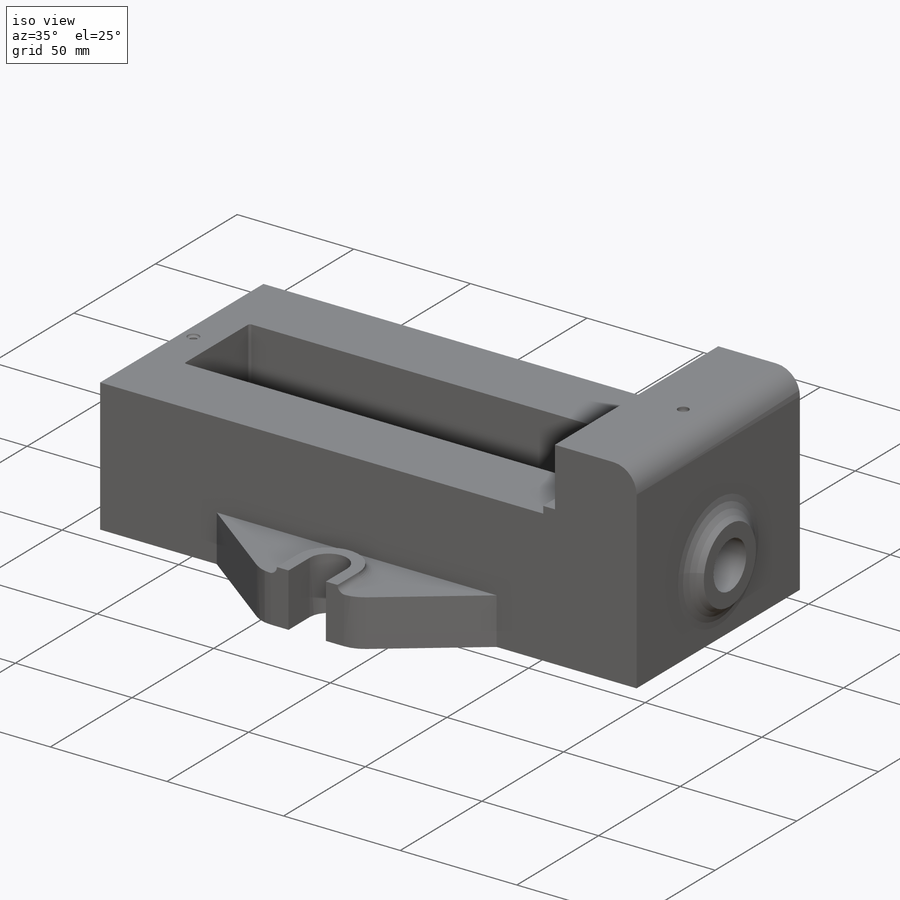
[diagram: iso view]
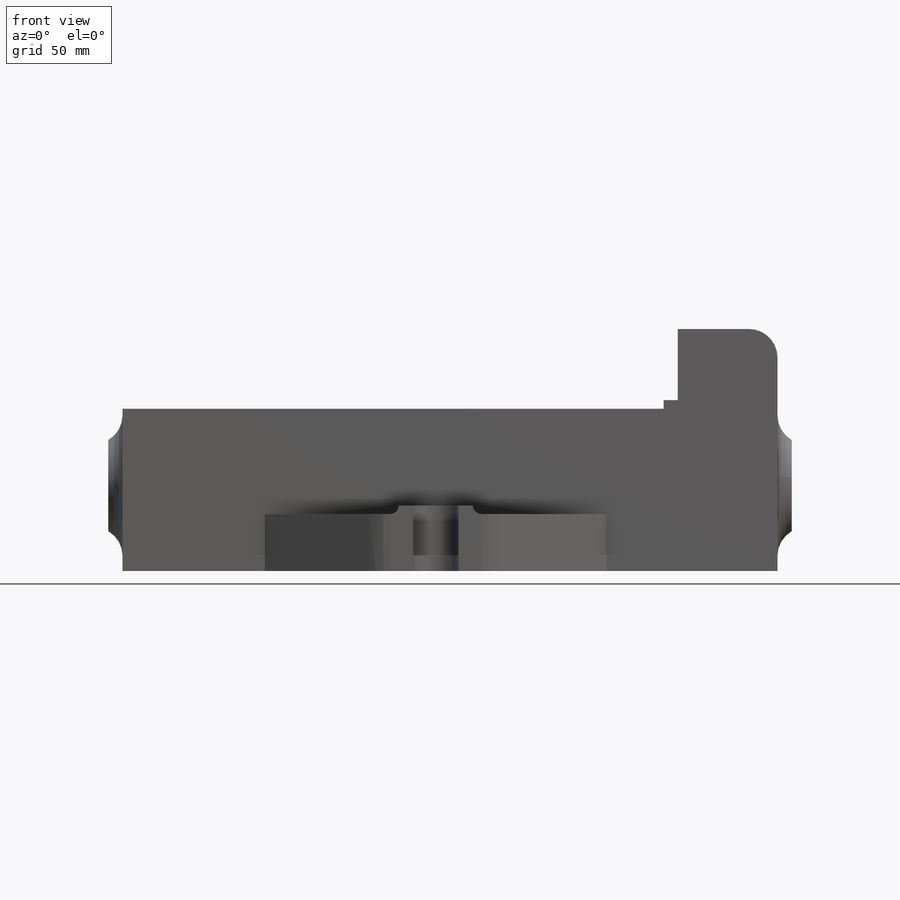
[diagram: front view]
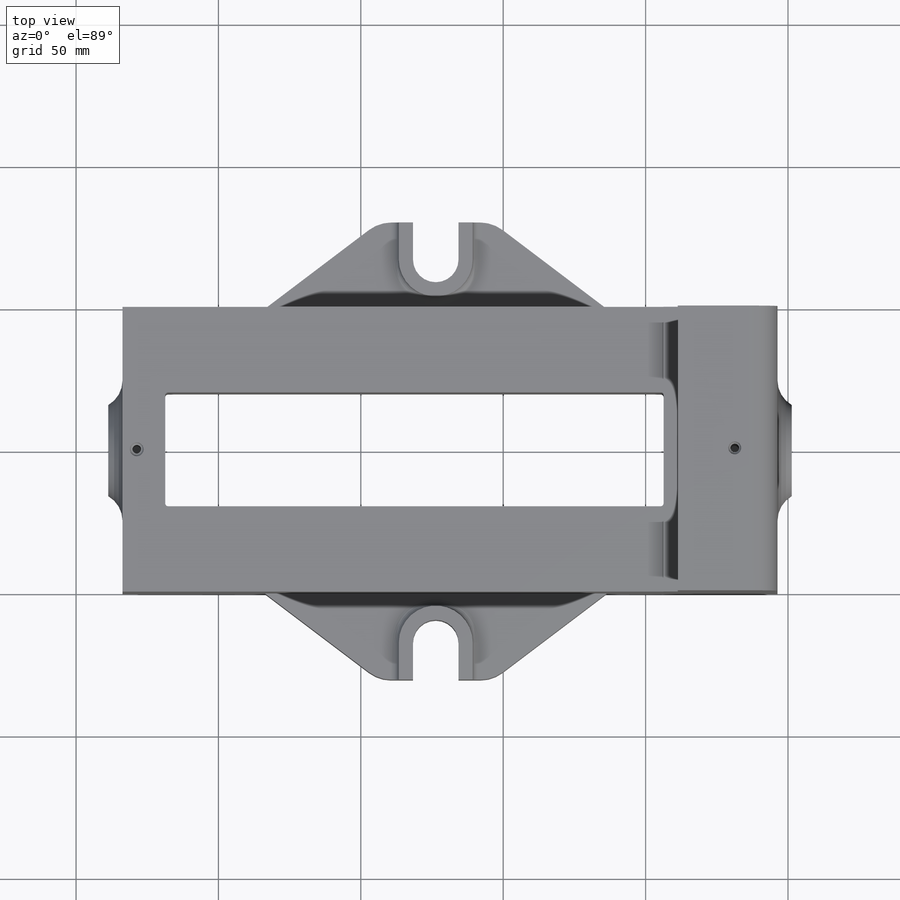
[diagram: top view]
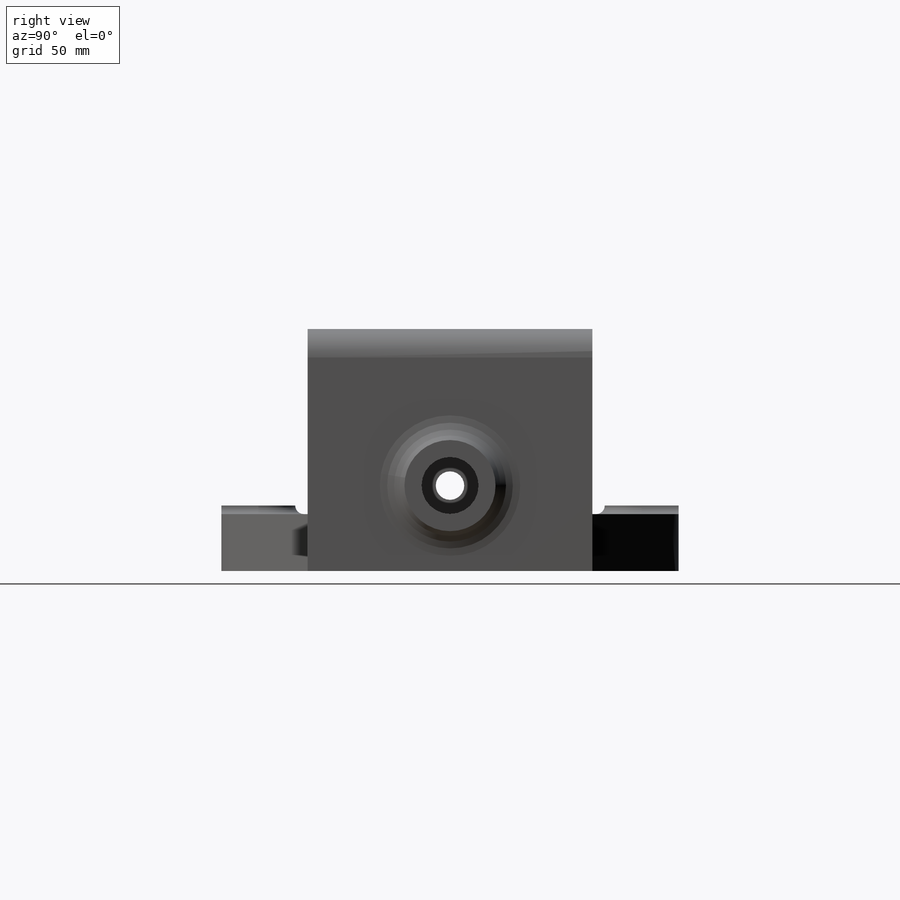
[diagram: right view]
SOLIDWORKS PART (.sldprt)
format: sldprt  version: not decoded by parser v0  size: 603,648 bytes
history: native  units: mm
features: sketch x19, cut_extrude x12, fillet x9, extrude x6, material x1 (+13 scaffold rows collapsed)
feature tree (60):
  scaffold x13  (default folders/planes/origin — collapsed)
  material  "Material <not specified>"
  sketch  "Sketch1"  dims[c1.D6=10.0mm c1.D1=85.0mm c1.D2=230.0mm c1.D3=40.0mm c1.D4=5.0mm c1.D5=25.0mm c1.D7=57.0mm c1.D8=~30.242987mm c2.D8=90.0deg c3.D8=30.0mm c3.D9=32.0mm]
  extrude  "Boss-Extrude1"  Depth=100mm
  sketch  "Sketch2"  dims[c1.D2=32.0mm c1.D1=37.5mm c2.D2=75.0mm c2.D1=30.0mm]
  extrude  "Boss-Extrude2"  Depth=5mm
  fillet  "Fillet1"  Radius=10mm
  sketch  "Sketch3"  dims[D2=12.0mm D3=32.0mm D1=30.0mm]
  extrude  "Boss-Extrude3"  Depth=5mm
  fillet  "Fillet2"  Radius=10mm
  sketch  "Sketch4"  dims[D1=10.0mm D2=10.0mm]
  cut_extrude  "Cut-Extrude1"  Depth=20mm
  sketch  "Sketch5"  dims[c1.D3=1.0mm c1.D1=40.0mm c1.D2=15.0mm c2.D3=0.0mm]
  cut_extrude  "Cut-Extrude2"  [1 undecoded]
  sketch  "Sketch6"  dims[D1=20.0mm]
  cut_extrude  "Cut-Extrude3"  [1 undecoded]
  sketch  "Sketch7"  dims[c1.D4=8.0mm c1.D5=13.0mm c1.D1=120.0mm c1.D2=~150.429301mm c2.D1=115.0mm c2.D2=60.0mm c2.D3=20.0mm c2.D6=13.0mm]
  extrude  "Boss-Extrude5"  Depth=20mm
  sketch  "Sketch8"  dims[D1=13.0mm D2=0.0mm]
  extrude  "Boss-Extrude6"  Depth=3mm
  fillet  "Fillet3"  Radius=3mm
  sketch  "Sketch10"  dims[D1=13.0mm]
  extrude  "Boss-Extrude7"  Depth=3mm
  fillet  "Fillet4"  Radius=3mm
  sketch  "Sketch11"  dims[D1=10.0mm]
  sketch  "Sketch14"  dims[D1=3.0mm]
  cut_extrude  "Cut-Extrude4"  [1 undecoded]
  sketch  "Sketch15"  dims[D1=~4.823552mm]
  cut_extrude  "Cut-Extrude5"  Depth=1mm
  fillet  "Fillet5"  Radius=1mm
  sketch  "Sketch16"  dims[D3=5.0mm D1=12.5mm D2=30.0mm]
  cut_extrude  "Cut-Extrude6"  Depth=13mm
  sketch  "Sketch18"  dims[D1=6.0mm]
  cut_extrude  "Cut-Extrude7"  Depth=10mm
  fillet  "Fillet6"  Radius=1mm
  sketch  "Sketch20"  dims[D1=6.0mm]
  cut_extrude  "Cut-Extrude8"  Depth=10mm
  fillet  "Fillet7"  Radius=1mm
  sketch  "Sketch21"  dims[D2=3.0mm D1=20.0mm]
  cut_extrude  "Cut-Extrude9"  [1 undecoded]
  sketch  "Sketch22"  dims[D1=4.5mm D2=4.5mm]
  cut_extrude  "Cut-Extrude10"  Depth=2.5mm
  fillet  "Fillet8"  Radius=2mm
  sketch  "Sketch23"  dims[D1=0.0mm D2=0.0mm D3=52.0mm]
  cut_extrude  "Cut-Extrude11"  Depth=13mm
  sketch  "Sketch25"  dims[D1=0.0mm D2=0.0mm D3=60.0mm]
  cut_extrude  "Cut-Extrude12"  Depth=10mm
  fillet  "Fillet9"  Radius=5mm
decode coverage: 42 of 46 modeling features carry decoded parameters
note: ~ marks probable driven/reference dimensions
note: 4 parameter values undecoded
summary: no parameter record found for 4 features
note: suppression state not decoded; provenance and decode notes live in map.json
